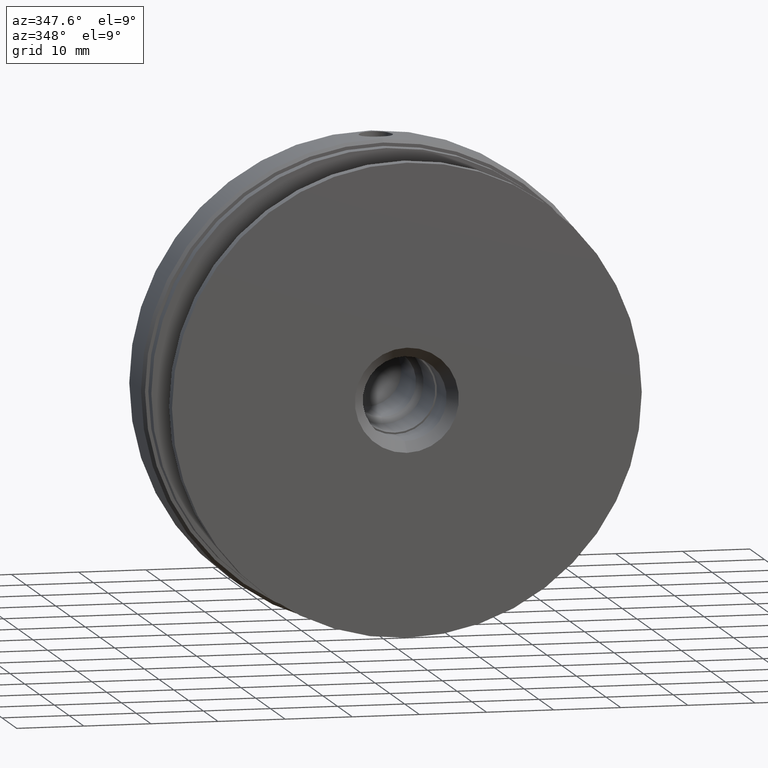
[diagram: clean part render]
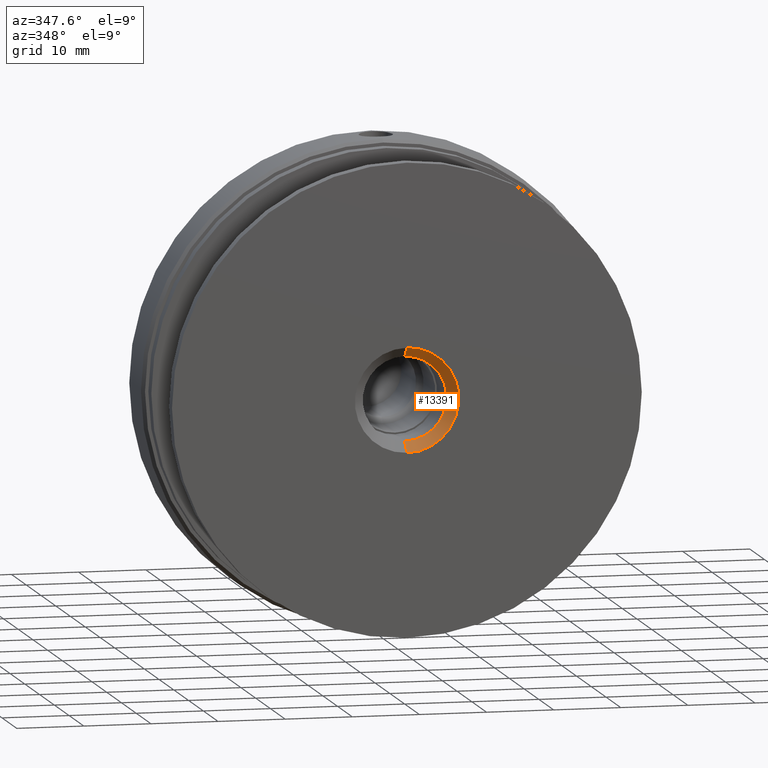
[diagram: same view with one face highlighted and labeled with its STEP entity id]
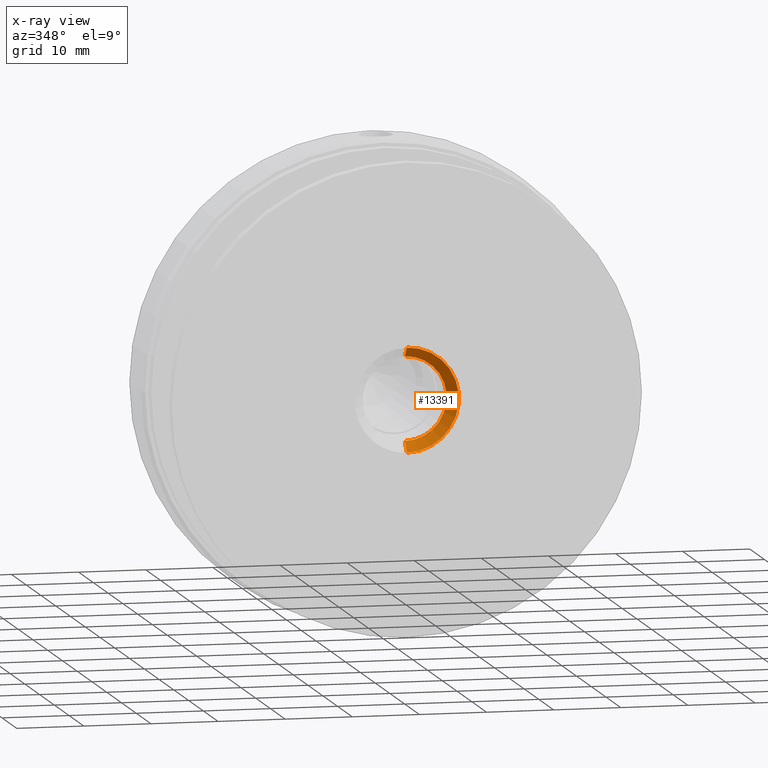
[diagram: x-ray of the same camera — body ghosted, the highlighted face saturated]
A machine part, auxiliary view. The second image highlights one B-rep face of the part: STEP entity #13391.
The next image is the same camera in x-ray: the body ghosted, the highlighted face saturated — about 0% of this face is hidden behind the body in this view.
In plain terms, the highlighted conical surface has half-angle 45 deg.
Its self-contained STEP definition (entity closure, byte-faithful):
#278 = CARTESIAN_POINT ( 'NONE',  ( 0.000000000000000000, -3.686287386450715076E-15, -7.750000000000007994 ) ) ;
#378 = EDGE_LOOP ( 'NONE', ( #14660, #13305, #12960, #7608 ) ) ;
#390 = FACE_OUTER_BOUND ( 'NONE', #378, .T. ) ;
#831 = CARTESIAN_POINT ( 'NONE',  ( 0.000000000000000000, 1.500000000000011768, 0.000000000000000000 ) ) ;
#1261 = DIRECTION ( 'NONE',  ( 0.000000000000000000, -0.7071067811865493491, -0.7071067811865456854 ) ) ;
#1620 = AXIS2_PLACEMENT_3D ( 'NONE', #10872, #1629, #5022 ) ;
#1629 = DIRECTION ( 'NONE',  ( 0.000000000000000000, 1.000000000000000000, 0.000000000000000000 ) ) ;
#2001 = AXIS2_PLACEMENT_3D ( 'NONE', #2623, #10743, #6206 ) ;
#2084 = DIRECTION ( 'NONE',  ( 0.000000000000000000, 0.000000000000000000, -1.000000000000000000 ) ) ;
#2300 = VECTOR ( 'NONE', #13233, 1000.000000000000114 ) ;
#2623 = CARTESIAN_POINT ( 'NONE',  ( 0.000000000000000000, 1.500000000000011768, 0.000000000000000000 ) ) ;
#2680 = CARTESIAN_POINT ( 'NONE',  ( 9.491012693391997648E-16, -3.686287386450715076E-15, 7.750000000000007994 ) ) ;
#3180 = DIRECTION ( 'NONE',  ( 0.000000000000000000, -1.000000000000000000, 0.000000000000000000 ) ) ;
#3433 = CONICAL_SURFACE ( 'NONE', #2001, 6.250000000000000000, 0.7853981633974456145 ) ;
#3459 = VECTOR ( 'NONE', #1261, 1000.000000000000114 ) ;
#4204 = AXIS2_PLACEMENT_3D ( 'NONE', #831, #3180, #2084 ) ;
#5022 = DIRECTION ( 'NONE',  ( 0.000000000000000000, 0.000000000000000000, -1.000000000000000000 ) ) ;
#5703 = VERTEX_POINT ( 'NONE', #10593 ) ;
#5849 = EDGE_CURVE ( 'NONE', #11891, #8678, #11467, .T. ) ;
#6206 = DIRECTION ( 'NONE',  ( 0.000000000000000000, 0.000000000000000000, -1.000000000000000000 ) ) ;
#7256 = LINE ( 'NONE', #11552, #3459 ) ;
#7585 = CARTESIAN_POINT ( 'NONE',  ( 7.654042494670957606E-16, 1.500000000000011768, 6.250000000000000000 ) ) ;
#7608 = ORIENTED_EDGE ( 'NONE', *, *, #14152, .F. ) ;
#7802 = CIRCLE ( 'NONE', #4204, 6.250000000000000000 ) ;
#8678 = VERTEX_POINT ( 'NONE', #2680 ) ;
#9074 = VERTEX_POINT ( 'NONE', #278 ) ;
#10283 = EDGE_CURVE ( 'NONE', #5703, #11891, #7802, .T. ) ;
#10286 = CARTESIAN_POINT ( 'NONE',  ( 7.654042494670957606E-16, 1.500000000000011768, 6.250000000000000000 ) ) ;
#10593 = CARTESIAN_POINT ( 'NONE',  ( 0.000000000000000000, 1.500000000000011768, -6.250000000000000000 ) ) ;
#10743 = DIRECTION ( 'NONE',  ( 0.000000000000000000, -1.000000000000000000, 0.000000000000000000 ) ) ;
#10872 = CARTESIAN_POINT ( 'NONE',  ( 0.000000000000000000, -3.469446951953614189E-15, 0.000000000000000000 ) ) ;
#11467 = LINE ( 'NONE', #7585, #2300 ) ;
#11552 = CARTESIAN_POINT ( 'NONE',  ( 0.000000000000000000, 1.500000000000011768, -6.250000000000000000 ) ) ;
#11807 = EDGE_CURVE ( 'NONE', #5703, #9074, #7256, .T. ) ;
#11891 = VERTEX_POINT ( 'NONE', #10286 ) ;
#12960 = ORIENTED_EDGE ( 'NONE', *, *, #11807, .T. ) ;
#13233 = DIRECTION ( 'NONE',  ( 8.659560562354909439E-17, -0.7071067811865493491, 0.7071067811865456854 ) ) ;
#13305 = ORIENTED_EDGE ( 'NONE', *, *, #10283, .F. ) ;
#13391 = ADVANCED_FACE ( 'NONE', ( #390 ), #3433, .F. ) ;
#13836 = CIRCLE ( 'NONE', #1620, 7.750000000000007105 ) ;
#14152 = EDGE_CURVE ( 'NONE', #8678, #9074, #13836, .T. ) ;
#14660 = ORIENTED_EDGE ( 'NONE', *, *, #5849, .F. ) ;